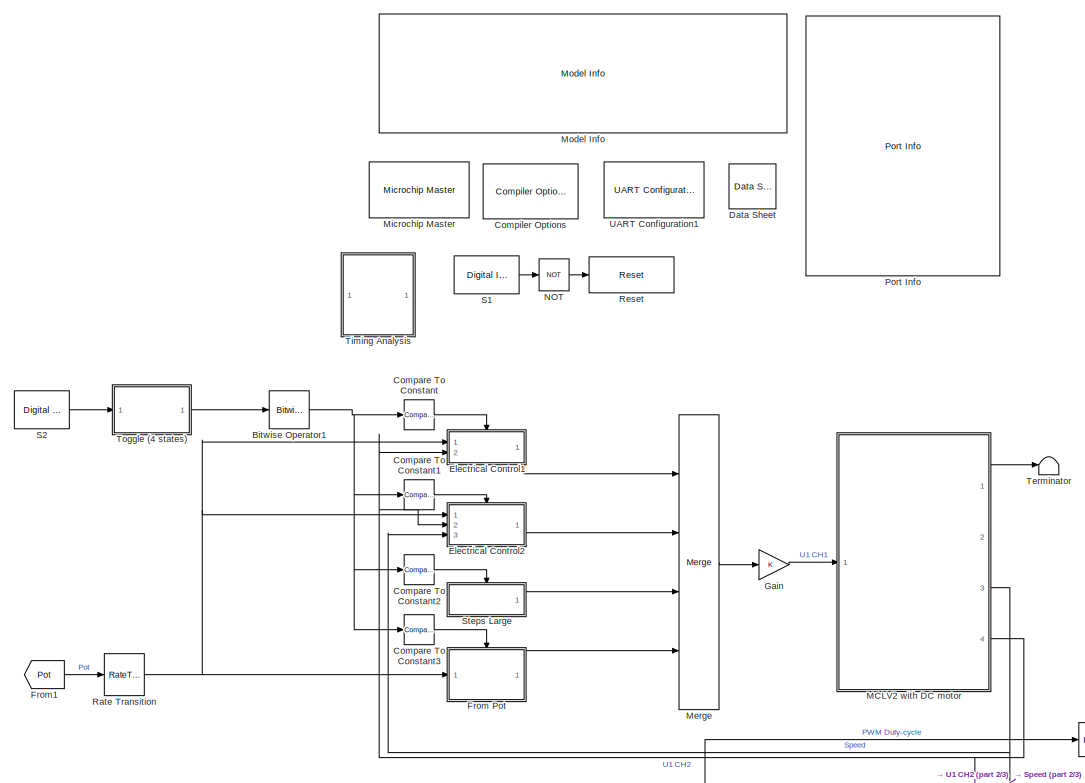
[diagram: root canvas - part 1/3, top center region]
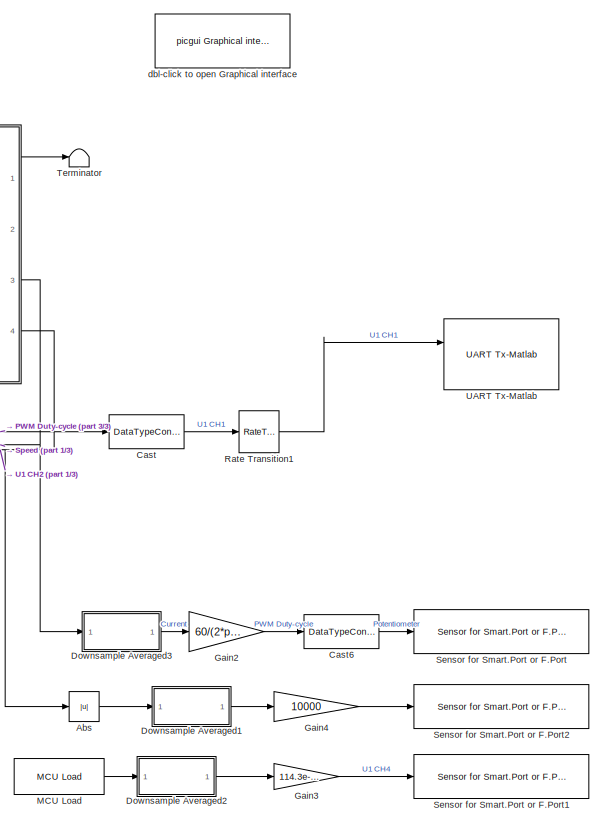
[diagram: root canvas - part 2/3, middle right region]
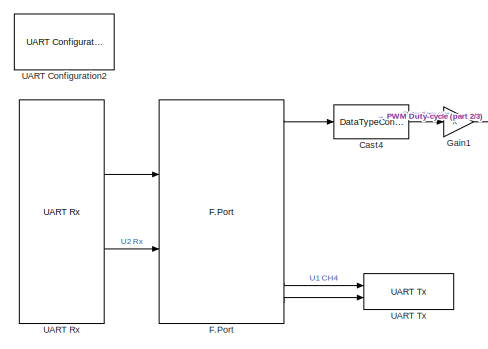
[diagram: root canvas - part 3/3, bottom left region]
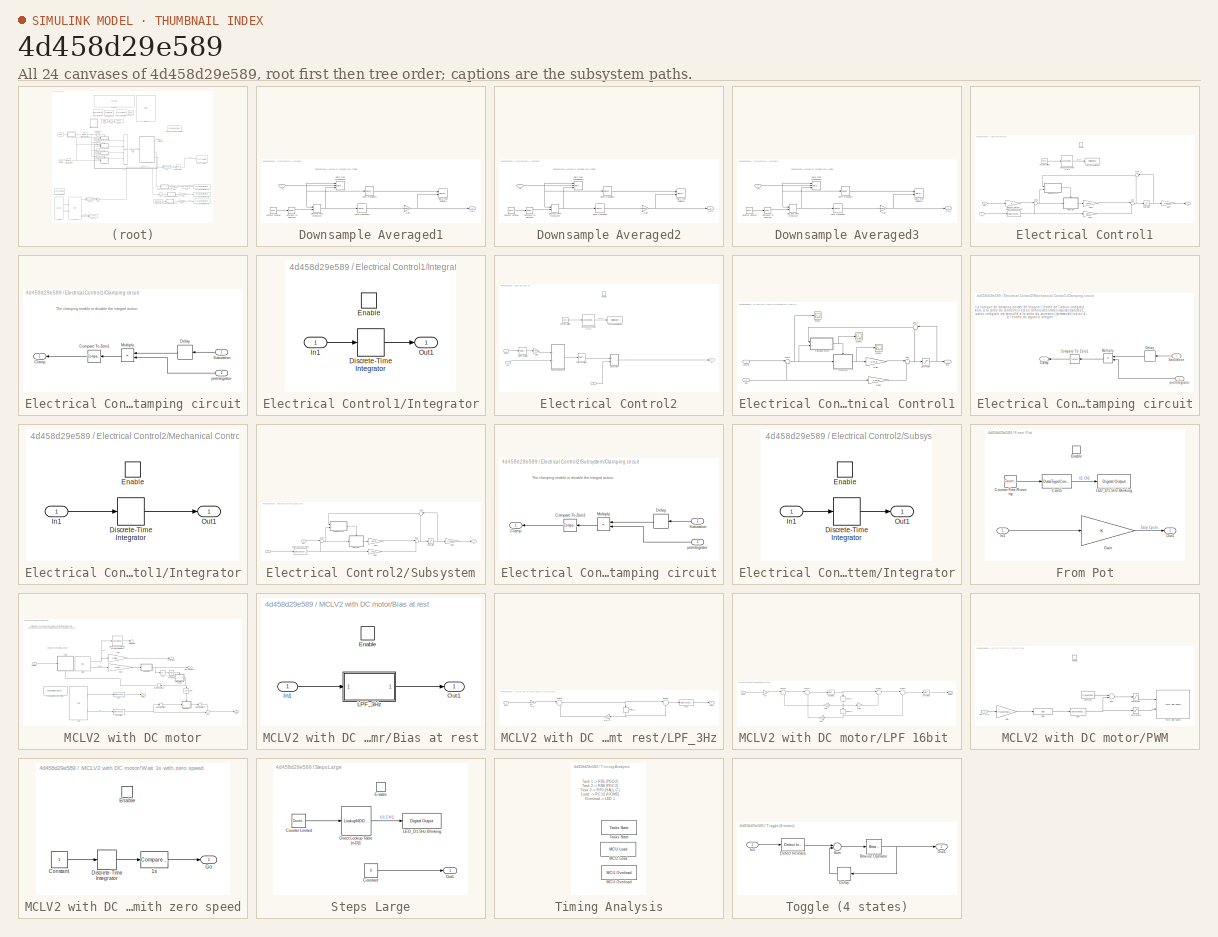
[diagram: thumbnail index - all 24 canvases of the model, root first then tree order]
MODEL slx_4d458d29e589
KIND model
CONFIG AbsTol = auto
CONFIG EnableMultiTasking = on
CONFIG FixedStep = .00005
CONFIG MaxStep = auto
CONFIG MinStep = auto
CONFIG RelTol = 1e-3
CONFIG SampleTimeConstraint = Unconstrained
CONFIG Solver = FixedStepDiscrete
CONFIG SolverName = FixedStepDiscrete
CONFIG StartTime = 0.0
CONFIG StopTime = inf
BLOCK [Abs] Abs
  SaturateOnIntegerOverflow = off
BLOCK [Reference] Bitwise Operator1  REF=simulink/Logic and Bit
Operations/Bitwise
Operator
  Ports = [1, 1]
  SourceBlock = simulink/Logic and Bit\nOperations/Bitwise\nOperator
  SourceProductBaseCode = SL
  SourceProductName = Simulink
  SourceType = Bitwise Operator
BLOCK [DataTypeConversion] Cast
  ConvertRealWorld = Stored Integer (SI)
  OutDataTypeStr = int16
  RndMeth = Floor
  SaturateOnIntegerOverflow = off
BLOCK [DataTypeConversion] Cast4
  ConvertRealWorld = Stored Integer (SI)
  OutDataTypeStr = fixdt(1,16,15)
  RndMeth = Floor
  SaturateOnIntegerOverflow = off
BLOCK [DataTypeConversion] Cast6
  ConvertRealWorld = Stored Integer (SI)
  OutDataTypeStr = uint32
  RndMeth = Floor
  SaturateOnIntegerOverflow = off
BLOCK [Reference] Compare To Constant  REF=simulink/Logic and Bit
Operations/Compare
To Constant
  Ports = [1, 1]
  SourceBlock = simulink/Logic and Bit\nOperations/Compare\nTo Constant
  SourceProductBaseCode = SL
  SourceProductName = Simulink
  SourceType = Compare To Constant
BLOCK [Reference] Compare To Constant1  REF=simulink/Logic and Bit
Operations/Compare
To Constant
  Ports = [1, 1]
  SourceBlock = simulink/Logic and Bit\nOperations/Compare\nTo Constant
  SourceProductBaseCode = SL
  SourceProductName = Simulink
  SourceType = Compare To Constant
BLOCK [Reference] Compare To Constant2  REF=simulink/Logic and Bit
Operations/Compare
To Constant
  Ports = [1, 1]
  SourceBlock = simulink/Logic and Bit\nOperations/Compare\nTo Constant
  SourceProductBaseCode = SL
  SourceProductName = Simulink
  SourceType = Compare To Constant
BLOCK [Reference] Compare To Constant3  REF=simulink/Logic and Bit
Operations/Compare
To Constant
  Ports = [1, 1]
  SourceBlock = simulink/Logic and Bit\nOperations/Compare\nTo Constant
  SourceProductBaseCode = SL
  SourceProductName = Simulink
  SourceType = Compare To Constant
BLOCK [Reference] Compiler Options  REF=MCHP_Blockset/System Configuration/Compiler Options
  Ports = []
  Priority = 1
  SourceBlock = MCHP_Blockset/System Configuration/Compiler Options
  SourceProductName = MPLAB Device Blocks for Simulink
BLOCK [Reference] Data Sheet  REF=MCHP_Blockset/System Info/Data Sheet
  AttributesFormatString = %<cpy_MCHP_Id>
  Ports = []
  SourceBlock = MCHP_Blockset/System Info/Data Sheet
  SourceProductName = MPLAB Device Blocks for Simulink
BLOCK [SubSystem] Downsample Averaged1
  Ports = [1, 1]
  RequestExecContextInheritance = off
BLOCK [Reference] Downsample Averaged1/Compare To Constant  REF=simulink/Logic and Bit
Operations/Compare
To Constant
  Ports = [1, 1]
  SourceBlock = simulink/Logic and Bit\nOperations/Compare\nTo Constant
  SourceProductBaseCode = SL
  SourceProductName = Simulink
  SourceType = Compare To Constant
BLOCK [Reference] Downsample Averaged1/Counter Limited  REF=simulink/Sources/Counter
Limited
  Ports = [0, 1]
  SourceBlock = simulink/Sources/Counter\nLimited
  SourceProductBaseCode = SL
  SourceProductName = Simulink
  SourceType = Counter Limited
BLOCK [DataTypeDuplicate] Downsample Averaged1/Data Type Duplicate
  Ports = [2]
BLOCK [Reference] Downsample Averaged1/Data Type Propagation  REF=simulink/Signal
Attributes/Data Type
Propagation
  Ports = [3]
  SourceBlock = simulink/Signal\nAttributes/Data Type\nPropagation
  SourceProductBaseCode = SL
  SourceProductName = Simulink
  SourceType = Data Type Propagation
BLOCK [DiscreteIntegrator] Downsample Averaged1/Discrete-Time Integrator
  ExternalReset = sampled level
  ICPrevOutput = DiscIntNeverNeededParam
  ICPrevScaledInput = DiscIntNeverNeededParam
  InitialConditionSetting = Auto
  IntegratorMethod = Accumulation: Backward Euler
  OutDataTypeStr = Inherit: Inherit via back propagation
  Ports = [2, 1]
  SampleTime = -1
  gainval = 1
BLOCK [Gain] Downsample Averaged1/Gain
  Gain = 1/DownSample
  OutDataTypeStr = Inherit: Inherit via back propagation
  ParamDataTypeStr = Inherit: Inherit via internal rule
  SaturateOnIntegerOverflow = off
BLOCK [Inport] Downsample Averaged1/In1
  IconDisplay = Port number
BLOCK [Outport] Downsample Averaged1/Out1
  IconDisplay = Port number
BLOCK [RateTransition] Downsample Averaged1/Rate Transition1
  Deterministic = off
  OutPortSampleTime = [InputSampleTime * DownSample]
BLOCK [RateTransition] Downsample Averaged1/Rate Transition3
  OutPortSampleTime = [InputSampleTime * DownSample]
BLOCK [SubSystem] Downsample Averaged2
  Ports = [1, 1]
  RequestExecContextInheritance = off
BLOCK [Reference] Downsample Averaged2/Compare To Constant  REF=simulink/Logic and Bit
Operations/Compare
To Constant
  Ports = [1, 1]
  SourceBlock = simulink/Logic and Bit\nOperations/Compare\nTo Constant
  SourceProductBaseCode = SL
  SourceProductName = Simulink
  SourceType = Compare To Constant
BLOCK [Reference] Downsample Averaged2/Counter Limited  REF=simulink/Sources/Counter
Limited
  Ports = [0, 1]
  SourceBlock = simulink/Sources/Counter\nLimited
  SourceProductBaseCode = SL
  SourceProductName = Simulink
  SourceType = Counter Limited
BLOCK [DataTypeDuplicate] Downsample Averaged2/Data Type Duplicate
  Ports = [2]
BLOCK [Reference] Downsample Averaged2/Data Type Propagation  REF=simulink/Signal
Attributes/Data Type
Propagation
  Ports = [3]
  SourceBlock = simulink/Signal\nAttributes/Data Type\nPropagation
  SourceProductBaseCode = SL
  SourceProductName = Simulink
  SourceType = Data Type Propagation
BLOCK [DiscreteIntegrator] Downsample Averaged2/Discrete-Time Integrator
  ExternalReset = sampled level
  ICPrevOutput = DiscIntNeverNeededParam
  ICPrevScaledInput = DiscIntNeverNeededParam
  InitialConditionSetting = Auto
  IntegratorMethod = Accumulation: Backward Euler
  OutDataTypeStr = Inherit: Inherit via back propagation
  Ports = [2, 1]
  SampleTime = -1
  gainval = 1
BLOCK [Gain] Downsample Averaged2/Gain
  Gain = 1/DownSample
  OutDataTypeStr = Inherit: Inherit via back propagation
  ParamDataTypeStr = Inherit: Inherit via internal rule
  SaturateOnIntegerOverflow = off
BLOCK [Inport] Downsample Averaged2/In1
  IconDisplay = Port number
BLOCK [Outport] Downsample Averaged2/Out1
  IconDisplay = Port number
BLOCK [RateTransition] Downsample Averaged2/Rate Transition1
  Deterministic = off
  OutPortSampleTime = [InputSampleTime * DownSample]
BLOCK [RateTransition] Downsample Averaged2/Rate Transition3
  OutPortSampleTime = [InputSampleTime * DownSample]
BLOCK [SubSystem] Downsample Averaged3
  Ports = [1, 1]
  RequestExecContextInheritance = off
BLOCK [Reference] Downsample Averaged3/Compare To Constant  REF=simulink/Logic and Bit
Operations/Compare
To Constant
  Ports = [1, 1]
  SourceBlock = simulink/Logic and Bit\nOperations/Compare\nTo Constant
  SourceProductBaseCode = SL
  SourceProductName = Simulink
  SourceType = Compare To Constant
BLOCK [Reference] Downsample Averaged3/Counter Limited  REF=simulink/Sources/Counter
Limited
  Ports = [0, 1]
  SourceBlock = simulink/Sources/Counter\nLimited
  SourceProductBaseCode = SL
  SourceProductName = Simulink
  SourceType = Counter Limited
BLOCK [DataTypeDuplicate] Downsample Averaged3/Data Type Duplicate
  Ports = [2]
BLOCK [Reference] Downsample Averaged3/Data Type Propagation  REF=simulink/Signal
Attributes/Data Type
Propagation
  Ports = [3]
  SourceBlock = simulink/Signal\nAttributes/Data Type\nPropagation
  SourceProductBaseCode = SL
  SourceProductName = Simulink
  SourceType = Data Type Propagation
BLOCK [DiscreteIntegrator] Downsample Averaged3/Discrete-Time Integrator
  ExternalReset = sampled level
  ICPrevOutput = DiscIntNeverNeededParam
  ICPrevScaledInput = DiscIntNeverNeededParam
  InitialConditionSetting = Auto
  IntegratorMethod = Accumulation: Backward Euler
  OutDataTypeStr = Inherit: Inherit via back propagation
  Ports = [2, 1]
  SampleTime = -1
  gainval = 1
BLOCK [Gain] Downsample Averaged3/Gain
  Gain = 1/DownSample
  OutDataTypeStr = Inherit: Inherit via back propagation
  ParamDataTypeStr = Inherit: Inherit via internal rule
  SaturateOnIntegerOverflow = off
BLOCK [Inport] Downsample Averaged3/In1
  IconDisplay = Port number
BLOCK [Outport] Downsample Averaged3/Out1
  IconDisplay = Port number
BLOCK [RateTransition] Downsample Averaged3/Rate Transition1
  Deterministic = off
  OutPortSampleTime = [InputSampleTime * DownSample]
BLOCK [RateTransition] Downsample Averaged3/Rate Transition3
  OutPortSampleTime = [InputSampleTime * DownSample]
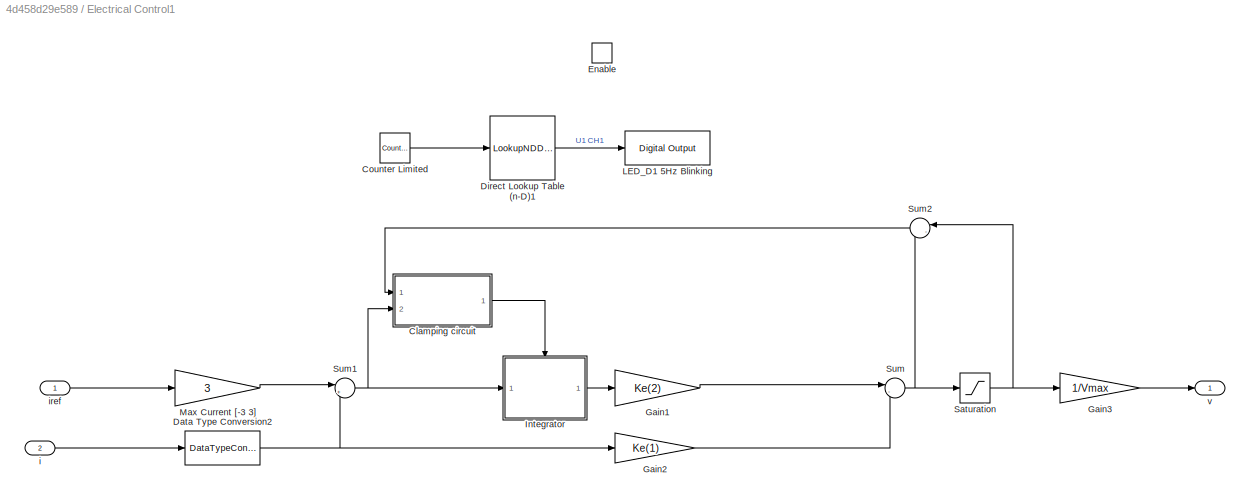
BLOCK [SubSystem] Electrical Control1
  Ports = [2, 1, 1]
  RequestExecContextInheritance = off
BLOCK [SubSystem] Electrical Control1/Clamping circuit
  Ports = [2, 1]
  RequestExecContextInheritance = off
BLOCK [Outport] Electrical Control1/Clamping circuit/Clamp
  DisableCoverage = on
  IconDisplay = Port number
BLOCK [Reference] Electrical Control1/Clamping circuit/Compare To Zero1  REF=simulink/Logic and Bit
Operations/Compare
To Zero
  Ports = [1, 1]
  SourceBlock = simulink/Logic and Bit\nOperations/Compare\nTo Zero
  SourceProductBaseCode = SL
  SourceProductName = Simulink
  SourceType = Compare To Zero
BLOCK [Delay] Electrical Control1/Clamping circuit/Delay
  DelayLength = 1
  InitialCondition = 0
  InputPortMap = u0
  Ports = [1, 1]
BLOCK [Product] Electrical Control1/Clamping circuit/Multiply
  InputSameDT = off
  OutDataTypeStr = Inherit: Inherit via internal rule
  Ports = [2, 1]
  RndMeth = Floor
  SaturateOnIntegerOverflow = off
BLOCK [Inport] Electrical Control1/Clamping circuit/Saturation
  DisableCoverage = on
  IconDisplay = Port number
BLOCK [Inport] Electrical Control1/Clamping circuit/preIntegrator
  DisableCoverage = on
  IconDisplay = Port number
  Port = 2
  VarSizeSig = No
BLOCK [Reference] Electrical Control1/Counter Limited  REF=simulink/Sources/Counter
Limited
  Ports = [0, 1]
  SourceBlock = simulink/Sources/Counter\nLimited
  SourceProductBaseCode = SL
  SourceProductName = Simulink
  SourceType = Counter Limited
BLOCK [DataTypeConversion] Electrical Control1/Data Type Conversion2
  RndMeth = Floor
BLOCK [LookupNDDirect] Electrical Control1/Direct Lookup Table (n-D)1
  NumberOfTableDimensions = 1
  Ports = [1, 1]
  Table = [1 0 0 0 0 0 0 0 0 0]
  TableDataTypeStr = boolean
BLOCK [EnablePort] Electrical Control1/Enable
  Ports = []
  StatesWhenEnabling = reset
BLOCK [Gain] Electrical Control1/Gain1
  Gain = Ke(2)
  OutDataTypeStr = fixdt(1,16)
  OutMax = [2*Vmax]
  OutMin = [2*Vmin]
  ParamDataTypeStr = Inherit: Inherit via internal rule
  SaturateOnIntegerOverflow = off
BLOCK [Gain] Electrical Control1/Gain2
  Gain = Ke(1)
  OutDataTypeStr = fixdt(1,16)
  OutMax = [2*Vmax]
  OutMin = [2*Vmin]
  ParamDataTypeStr = Inherit: Inherit via internal rule
  SaturateOnIntegerOverflow = off
BLOCK [Gain] Electrical Control1/Gain3
  Gain = 1/Vmax
  OutDataTypeStr = fixdt(1,16,15)
  ParamDataTypeStr = Inherit: Inherit via internal rule
BLOCK [SubSystem] Electrical Control1/Integrator
  Ports = [1, 1, 1]
  RequestExecContextInheritance = off
BLOCK [DiscreteIntegrator] Electrical Control1/Integrator/Discrete-Time Integrator
  ICPrevOutput = DiscIntNeverNeededParam
  ICPrevScaledInput = DiscIntNeverNeededParam
  InitialConditionSetting = Auto
  OutDataTypeStr = fixdt(1,32)
  OutMax = [2*Imax]
  OutMin = [2*Imin]
  Ports = [1, 1]
  SampleTime = Ts
BLOCK [EnablePort] Electrical Control1/Integrator/Enable
  Ports = []
BLOCK [Inport] Electrical Control1/Integrator/In1
  IconDisplay = Port number
BLOCK [Outport] Electrical Control1/Integrator/Out1
  IconDisplay = Port number
BLOCK [Reference] Electrical Control1/LED_D1 5Hz Blinking  REF=MCHP_Blockset/Digital IO/Digital Output
  Ports = [1]
  SourceBlock = MCHP_Blockset/Digital IO/Digital Output
  SourceProductName = MPLAB Device Blocks for Simulink
BLOCK [Gain] Electrical Control1/Max Current [-3 3]
  Gain = 3
  OutDataTypeStr = fixdt(1,16)
  OutMax = 3
  OutMin = -3
  ParamDataTypeStr = Inherit: Inherit via internal rule
  SaturateOnIntegerOverflow = off
BLOCK [Saturate] Electrical Control1/Saturation
  InputPortMap = u0
  LowerLimit = Vmin
  Ports = [1, 1]
  UpperLimit = Vmax
BLOCK [Sum] Electrical Control1/Sum
  IconShape = round
  InputSameDT = off
  Inputs = |--
  OutDataTypeStr = Inherit: Inherit via internal rule
  Ports = [2, 1]
BLOCK [Sum] Electrical Control1/Sum1
  IconShape = round
  InputSameDT = off
  Inputs = |+-
  OutDataTypeStr = fixdt(1,16)
  OutMax = [2*Imax]
  OutMin = [2*Imin]
  Ports = [2, 1]
BLOCK [Sum] Electrical Control1/Sum2
  AccumDataTypeStr = Inherit: Same as first input
  IconShape = round
  InputSameDT = off
  Inputs = |-+
  OutDataTypeStr = Inherit: Same as accumulator
  Ports = [2, 1]
  SaturateOnIntegerOverflow = off
BLOCK [Inport] Electrical Control1/i
  IconDisplay = Port number
  Port = 2
BLOCK [Inport] Electrical Control1/iref
  IconDisplay = Port number
BLOCK [Outport] Electrical Control1/v
  IconDisplay = Port number
BLOCK [SubSystem] Electrical Control2
  Ports = [3, 1, 1]
  RequestExecContextInheritance = off
BLOCK [Reference] Electrical Control2/Counter Limited  REF=simulink/Sources/Counter
Limited
  Ports = [0, 1]
  SourceBlock = simulink/Sources/Counter\nLimited
  SourceProductBaseCode = SL
  SourceProductName = Simulink
  SourceType = Counter Limited
BLOCK [LookupNDDirect] Electrical Control2/Direct Lookup Table (n-D)1
  NumberOfTableDimensions = 1
  Ports = [1, 1]
  Table = [1 0 1 0 0 0 0 0 0 0]
  TableDataTypeStr = boolean
BLOCK [EnablePort] Electrical Control2/Enable
  Ports = []
  StatesWhenEnabling = reset
BLOCK [Gain] Electrical Control2/Gain
  Gain = 350
  OutDataTypeStr = Inherit: Inherit via back propagation
  ParamDataTypeStr = Inherit: Inherit via internal rule
  SaturateOnIntegerOverflow = off
BLOCK [Reference] Electrical Control2/LED_D1 5Hz Blinking  REF=MCHP_Blockset/Digital IO/Digital Output
  Ports = [1]
  SourceBlock = MCHP_Blockset/Digital IO/Digital Output
  SourceProductName = MPLAB Device Blocks for Simulink
BLOCK [SubSystem] Electrical Control2/Mechanical Control1
  Ports = [2, 1]
  RequestExecContextInheritance = off
BLOCK [SubSystem] Electrical Control2/Mechanical Control1/Clamping circuit
  Ports = [2, 1]
  RequestExecContextInheritance = off
BLOCK [Outport] Electrical Control2/Mechanical Control1/Clamping circuit/Clamp
  DisableCoverage = on
  IconDisplay = Port number
BLOCK [Reference] Electrical Control2/Mechanical Control1/Clamping circuit/Compare To Zero1  REF=simulink/Logic and Bit
Operations/Compare
To Zero
  Ports = [1, 1]
  SourceBlock = simulink/Logic and Bit\nOperations/Compare\nTo Zero
  SourceProductBaseCode = SL
  SourceProductName = Simulink
  SourceType = Compare To Zero
BLOCK [Delay] Electrical Control2/Mechanical Control1/Clamping circuit/Delay
  DelayLength = 1
  InitialCondition = 0
  InputPortMap = u0
  Ports = [1, 1]
  SampleTime = TsMeca
BLOCK [Product] Electrical Control2/Mechanical Control1/Clamping circuit/Multiply
  InputSameDT = off
  OutDataTypeStr = Inherit: Inherit via internal rule
  Ports = [2, 1]
  RndMeth = Floor
  SaturateOnIntegerOverflow = off
BLOCK [Inport] Electrical Control2/Mechanical Control1/Clamping circuit/Saturation
  DisableCoverage = on
  IconDisplay = Port number
BLOCK [Inport] Electrical Control2/Mechanical Control1/Clamping circuit/preIntegrator
  DisableCoverage = on
  IconDisplay = Port number
  Port = 2
  VarSizeSig = No
BLOCK [Gain] Electrical Control2/Mechanical Control1/Gain1
  Gain = Km(2)
  OutDataTypeStr = fixdt(1,16)
  OutMax = [2*Imax]
  OutMin = [-2*Imax]
  ParamDataTypeStr = Inherit: Inherit via internal rule
  SaturateOnIntegerOverflow = off
BLOCK [Gain] Electrical Control2/Mechanical Control1/Gain2
  Gain = Km(1)
  OutDataTypeStr = fixdt(1,16)
  OutMax = [2*Imax]
  OutMin = [-2*Imax]
  ParamDataTypeStr = Inherit: Inherit via internal rule
  SaturateOnIntegerOverflow = off
BLOCK [SubSystem] Electrical Control2/Mechanical Control1/Integrator
  Ports = [1, 1, 1]
  RequestExecContextInheritance = off
BLOCK [DiscreteIntegrator] Electrical Control2/Mechanical Control1/Integrator/Discrete-Time Integrator
  ICPrevOutput = DiscIntNeverNeededParam
  ICPrevScaledInput = DiscIntNeverNeededParam
  InitialConditionSetting = Auto
  OutDataTypeStr = fixdt(1,32)
  OutMax = [2*Ommax]
  OutMin = [2*Ommin]
  Ports = [1, 1]
  SampleTime = TsMeca
BLOCK [EnablePort] Electrical Control2/Mechanical Control1/Integrator/Enable
  Ports = []
BLOCK [Inport] Electrical Control2/Mechanical Control1/Integrator/In1
  IconDisplay = Port number
BLOCK [Outport] Electrical Control2/Mechanical Control1/Integrator/Out1
  IconDisplay = Port number
BLOCK [Saturate] Electrical Control2/Mechanical Control1/Saturation
  InputPortMap = u0
  LowerLimit = Imin
  Ports = [1, 1]
  UpperLimit = Imax
BLOCK [Scope] Electrical Control2/Mechanical Control1/Scope
  Floating = off
  NumInputPorts = 1
  Ports = [1]
  ScopeSpecificationString = Simulink.scopes.TimeScopeBlockCfg('CurrentConfiguration', extmgr.ConfigurationSet(extmgr.Configuration('Core','General UI',true),extmgr.Configuration('Core','Source UI',true),extmgr.Configuration('Sources','WiredSimulink',true,'DataLoggingVariableName','ScopeData2'),extmgr.Configuration('Visuals','Time Domain',true,'SerializedDisplays',{struct('MinYLimReal','-251.19531','MaxYLimReal','250.13281','...<+1406ch>
BLOCK [Scope] Electrical Control2/Mechanical Control1/Scope1
  Floating = off
  NumInputPorts = 1
  Ports = [1]
  ScopeSpecificationString = Simulink.scopes.TimeScopeBlockCfg('CurrentConfiguration', extmgr.ConfigurationSet(extmgr.Configuration('Core','General UI',true),extmgr.Configuration('Core','Source UI',true),extmgr.Configuration('Sources','WiredSimulink',true,'DataLoggingVariableName','ScopeData3'),extmgr.Configuration('Visuals','Time Domain',true,'SerializedDisplays',{struct('MinYLimReal','-6.72581','MaxYLimReal','37.52422','YLa...<+1402ch>
BLOCK [Scope] Electrical Control2/Mechanical Control1/Scope2
  Floating = off
  NumInputPorts = 1
  Ports = [1]
  ScopeSpecificationString = Simulink.scopes.TimeScopeBlockCfg('CurrentConfiguration', extmgr.ConfigurationSet(extmgr.Configuration('Core','General UI',true),extmgr.Configuration('Core','Source UI',true),extmgr.Configuration('Sources','WiredSimulink',true,'DataLoggingVariableName','ScopeData4'),extmgr.Configuration('Visuals','Time Domain',true,'SerializedDisplays',{struct('MinYLimReal','0.9','MaxYLimReal','1.1','YLabelReal','...<+1370ch>
BLOCK [Sum] Electrical Control2/Mechanical Control1/Sum
  IconShape = round
  InputSameDT = off
  Inputs = |--
  OutDataTypeStr = Inherit: Inherit via internal rule
  Ports = [2, 1]
BLOCK [Sum] Electrical Control2/Mechanical Control1/Sum1
  IconShape = round
  InputSameDT = off
  Inputs = |+-
  OutDataTypeStr = fixdt(1,16)
  OutMax = [2*Ommax]
  OutMin = [2*Ommin]
  Ports = [2, 1]
BLOCK [Sum] Electrical Control2/Mechanical Control1/Sum2
  AccumDataTypeStr = Inherit: Same as first input
  IconShape = round
  InputSameDT = off
  Inputs = |-+
  OutDataTypeStr = Inherit: Same as accumulator
  Ports = [2, 1]
  SaturateOnIntegerOverflow = off
BLOCK [Outport] Electrical Control2/Mechanical Control1/iref
  IconDisplay = Port number
BLOCK [Inport] Electrical Control2/Mechanical Control1/om
  IconDisplay = Port number
  Port = 2
BLOCK [Inport] Electrical Control2/Mechanical Control1/omref
  IconDisplay = Port number
  OutDataTypeStr = fixdt(1,16)
  OutMax = [Ommax]
  OutMin = [Ommin]
BLOCK [RateTransition] Electrical Control2/Rate Transition
  Deterministic = off
BLOCK [RateTransition] Electrical Control2/Rate Transition2
  Deterministic = off
BLOCK [SubSystem] Electrical Control2/Subsystem
  Ports = [2, 1]
  RequestExecContextInheritance = off
BLOCK [SubSystem] Electrical Control2/Subsystem/Clamping circuit
  Ports = [2, 1]
  RequestExecContextInheritance = off
BLOCK [Outport] Electrical Control2/Subsystem/Clamping circuit/Clamp
  DisableCoverage = on
  IconDisplay = Port number
BLOCK [Reference] Electrical Control2/Subsystem/Clamping circuit/Compare To Zero1  REF=simulink/Logic and Bit
Operations/Compare
To Zero
  Ports = [1, 1]
  SourceBlock = simulink/Logic and Bit\nOperations/Compare\nTo Zero
  SourceProductBaseCode = SL
  SourceProductName = Simulink
  SourceType = Compare To Zero
BLOCK [Delay] Electrical Control2/Subsystem/Clamping circuit/Delay
  DelayLength = 1
  InitialCondition = 0
  InputPortMap = u0
  Ports = [1, 1]
BLOCK [Product] Electrical Control2/Subsystem/Clamping circuit/Multiply
  InputSameDT = off
  OutDataTypeStr = Inherit: Inherit via internal rule
  Ports = [2, 1]
  RndMeth = Floor
  SaturateOnIntegerOverflow = off
BLOCK [Inport] Electrical Control2/Subsystem/Clamping circuit/Saturation
  DisableCoverage = on
  IconDisplay = Port number
BLOCK [Inport] Electrical Control2/Subsystem/Clamping circuit/preIntegrator
  DisableCoverage = on
  IconDisplay = Port number
  Port = 2
  VarSizeSig = No
BLOCK [DataTypeConversion] Electrical Control2/Subsystem/Data Type Conversion2
  RndMeth = Floor
BLOCK [Gain] Electrical Control2/Subsystem/Gain1
  Gain = Ke(2)
  OutDataTypeStr = fixdt(1,16)
  OutMax = [2*Vmax]
  OutMin = [2*Vmin]
  ParamDataTypeStr = Inherit: Inherit via internal rule
  SaturateOnIntegerOverflow = off
BLOCK [Gain] Electrical Control2/Subsystem/Gain2
  Gain = Ke(1)
  OutDataTypeStr = fixdt(1,16)
  OutMax = [2*Vmax]
  OutMin = [2*Vmin]
  ParamDataTypeStr = Inherit: Inherit via internal rule
  SaturateOnIntegerOverflow = off
BLOCK [Gain] Electrical Control2/Subsystem/Gain3
  Gain = 1/Vmax
  OutDataTypeStr = fixdt(1,16,15)
  ParamDataTypeStr = Inherit: Inherit via internal rule
BLOCK [SubSystem] Electrical Control2/Subsystem/Integrator
  Ports = [1, 1, 1]
  RequestExecContextInheritance = off
BLOCK [DiscreteIntegrator] Electrical Control2/Subsystem/Integrator/Discrete-Time Integrator
  ICPrevOutput = DiscIntNeverNeededParam
  ICPrevScaledInput = DiscIntNeverNeededParam
  InitialConditionSetting = Auto
  OutDataTypeStr = fixdt(1,32)
  OutMax = [2*Imax]
  OutMin = [2*Imin]
  Ports = [1, 1]
  SampleTime = Ts
BLOCK [EnablePort] Electrical Control2/Subsystem/Integrator/Enable
  Ports = []
BLOCK [Inport] Electrical Control2/Subsystem/Integrator/In1
  IconDisplay = Port number
BLOCK [Outport] Electrical Control2/Subsystem/Integrator/Out1
  IconDisplay = Port number
BLOCK [Saturate] Electrical Control2/Subsystem/Saturation
  InputPortMap = u0
  LowerLimit = Vmin
  Ports = [1, 1]
  UpperLimit = Vmax
BLOCK [Sum] Electrical Control2/Subsystem/Sum
  IconShape = round
  InputSameDT = off
  Inputs = |--
  OutDataTypeStr = Inherit: Inherit via internal rule
  Ports = [2, 1]
BLOCK [Sum] Electrical Control2/Subsystem/Sum1
  IconShape = round
  InputSameDT = off
  Inputs = |+-
  OutDataTypeStr = fixdt(1,16)
  OutMax = [2*Imax]
  OutMin = [2*Imin]
  Ports = [2, 1]
BLOCK [Sum] Electrical Control2/Subsystem/Sum2
  AccumDataTypeStr = Inherit: Same as first input
  IconShape = round
  InputSameDT = off
  Inputs = |-+
  OutDataTypeStr = Inherit: Same as accumulator
  Ports = [2, 1]
  SaturateOnIntegerOverflow = off
BLOCK [Inport] Electrical Control2/Subsystem/i
  IconDisplay = Port number
  Port = 2
BLOCK [Inport] Electrical Control2/Subsystem/iref
  IconDisplay = Port number
BLOCK [Outport] Electrical Control2/Subsystem/v
  IconDisplay = Port number
BLOCK [Inport] Electrical Control2/i
  IconDisplay = Port number
  Port = 2
BLOCK [Inport] Electrical Control2/om
  IconDisplay = Port number
  Port = 3
BLOCK [Inport] Electrical Control2/omref
  IconDisplay = Port number
BLOCK [Outport] Electrical Control2/v
  IconDisplay = Port number
BLOCK [Reference] F.Port  REF=UxV_Blockset/RECEIVER/F.Port
  Ports = [2, 10]
  SourceBlock = UxV_Blockset/RECEIVER/F.Port
  SourceProductName = UxV_Blocks
  SourceType = F.Port protocol parser (without PhyId)
  UserDataPersistent = on
BLOCK [SubSystem] From Pot
  Ports = [1, 1, 1]
  RequestExecContextInheritance = off
BLOCK [DataTypeConversion] From Pot/Cast5
  OutDataTypeStr = boolean
  RndMeth = Floor
  SaturateOnIntegerOverflow = off
BLOCK [Reference] From Pot/Counter Free-Running  REF=simulink/Sources/Counter
Free-Running
  Ports = [0, 1]
  SourceBlock = simulink/Sources/Counter\nFree-Running
  SourceProductBaseCode = SL
  SourceProductName = Simulink
  SourceType = Counter Free-Running
BLOCK [EnablePort] From Pot/Enable
  Ports = []
BLOCK [Gain] From Pot/Gain
  OutDataTypeStr = fixdt(1,16,15)
  ParamDataTypeStr = Inherit: Inherit via internal rule
  SaturateOnIntegerOverflow = off
BLOCK [Inport] From Pot/In1
  IconDisplay = Port number
BLOCK [Reference] From Pot/LED_D1 5Hz Blinking  REF=MCHP_Blockset/Digital IO/Digital Output
  Ports = [1]
  SourceBlock = MCHP_Blockset/Digital IO/Digital Output
  SourceProductName = MPLAB Device Blocks for Simulink
BLOCK [Outport] From Pot/Out1
  IconDisplay = Port number
BLOCK [From] From1
  GotoTag = Pot
BLOCK [Gain] Gain
  ParamDataTypeStr = Inherit: Inherit via internal rule
BLOCK [Gain] Gain1
  ParamDataTypeStr = Inherit: Inherit via internal rule
BLOCK [Gain] Gain2
  Gain = 60/(2*pi)
  OutDataTypeStr = int32
  ParamDataTypeStr = Inherit: Inherit via internal rule
BLOCK [Gain] Gain3
  Gain = 114.3e-9/0.002*1e4
  OutDataTypeStr = uint32
  ParamDataTypeStr = fixdt(0,16)
BLOCK [Gain] Gain4
  Gain = 10000
  OutDataTypeStr = uint32
  ParamDataTypeStr = Inherit: Inherit via internal rule
  SaturateOnIntegerOverflow = off
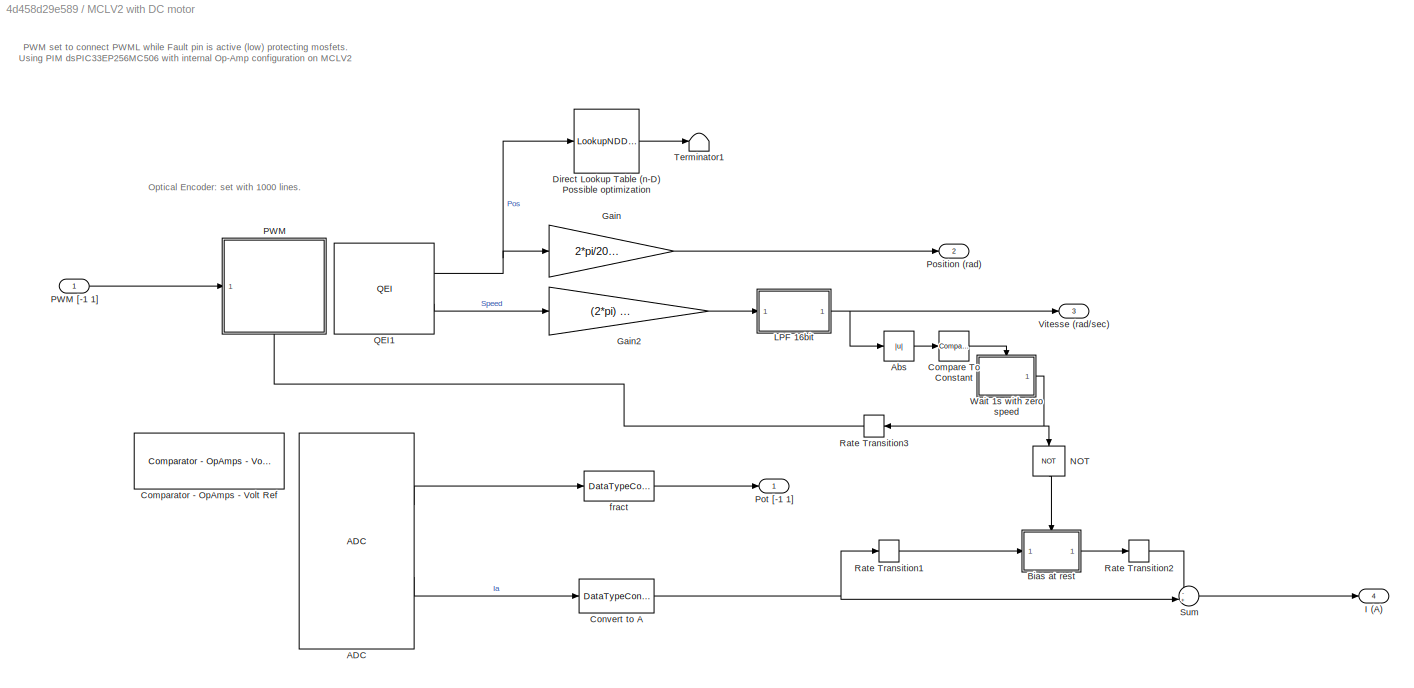
BLOCK [SubSystem] MCLV2 with DC motor
  Ports = [1, 4]
  RequestExecContextInheritance = off
BLOCK [Reference] MCLV2 with DC motor/ADC  REF=MCHP_Blockset/Analog IO/ADC
  Ports = [0, 2]
  Priority = 5
  SourceBlock = MCHP_Blockset/Analog IO/ADC
  SourceProductName = MPLAB Device Blocks for Simulink
BLOCK [Abs] MCLV2 with DC motor/Abs
  SaturateOnIntegerOverflow = off
BLOCK [SubSystem] MCLV2 with DC motor/Bias at rest
  Ports = [1, 1, 1]
  RequestExecContextInheritance = off
  TreatAsAtomicUnit = on
BLOCK [EnablePort] MCLV2 with DC motor/Bias at rest/Enable
  Ports = []
BLOCK [Inport] MCLV2 with DC motor/Bias at rest/In1
  IconDisplay = Port number
BLOCK [SubSystem] MCLV2 with DC motor/Bias at rest/LPF_3Hz
  ErrorFcn = dspFilterRealizedInBasicElemsAlgLoopErrFcnCallback
  Ports = [1, 1]
  RequestExecContextInheritance = off
  Tag = FilterWizardSubSystem
  UserDataPersistent = on
BLOCK [DataTypeConversion] MCLV2 with DC motor/Bias at rest/LPF_3Hz/Cast
  RndMeth = Floor
  SaturateOnIntegerOverflow = off
BLOCK [Delay] MCLV2 with DC motor/Bias at rest/LPF_3Hz/Delay11
  DelayLength = 1
  InitialCondition = 0
  InputPortMap = u0
  Ports = [1, 1]
BLOCK [Inport] MCLV2 with DC motor/Bias at rest/LPF_3Hz/Input
  IconDisplay = Port number
BLOCK [Outport] MCLV2 with DC motor/Bias at rest/LPF_3Hz/Output
  IconDisplay = Port number
BLOCK [Sum] MCLV2 with DC motor/Bias at rest/LPF_3Hz/SumA21
  AccumDataTypeStr = Inherit: Same as first input
  IconShape = round
  InputSameDT = off
  Inputs = |+-
  Ports = [2, 1]
  RndMeth = Convergent
BLOCK [Sum] MCLV2 with DC motor/Bias at rest/LPF_3Hz/SumB21
  AccumDataTypeStr = Inherit: Same as first input
  IconShape = round
  InputSameDT = off
  Inputs = |++
  Ports = [2, 1]
  RndMeth = Simplest
BLOCK [Gain] MCLV2 with DC motor/Bias at rest/LPF_3Hz/a(2)(1)
  Gain = -0.962994050950215286
  ParamDataTypeStr = fixdt(1,16,14)
  RndMeth = Simplest
  SaturateOnIntegerOverflow = off
BLOCK [Gain] MCLV2 with DC motor/Bias at rest/LPF_3Hz/s(1)
  Gain = 0.0185029745248923086
  OutDataTypeStr = fixdt(1,16,16)
  ParamDataTypeStr = fixdt(1,16,20)
  RndMeth = Convergent
BLOCK [Outport] MCLV2 with DC motor/Bias at rest/Out1
  IconDisplay = Port number
  InitialOutput = 0
BLOCK [Reference] MCLV2 with DC motor/Comparator - OpAmps - Volt Ref  REF=MCHP_Blockset/Analog IO/Comparator - OpAmps - Volt Ref
  Ports = []
  SourceBlock = MCHP_Blockset/Analog IO/Comparator - OpAmps - Volt Ref
  SourceProductName = MPLAB Device Blocks for Simulink
  SourceType = Comparator / Op amp (DS70357 & DS70648)
  UserDataPersistent = on
BLOCK [Reference] MCLV2 with DC motor/Compare To Constant  REF=simulink/Logic and Bit
Operations/Compare
To Constant
  Ports = [1, 1]
  SourceBlock = simulink/Logic and Bit\nOperations/Compare\nTo Constant
  SourceProductBaseCode = SL
  SourceProductName = Simulink
  SourceType = Compare To Constant
BLOCK [DataTypeConversion] MCLV2 with DC motor/Convert to A
  ConvertRealWorld = Stored Integer (SI)
  OutDataTypeStr = fixdt(1,16,4.4/32768,0)
  RndMeth = Floor
  SaturateOnIntegerOverflow = off
BLOCK [LookupNDDirect] MCLV2 with DC motor/Direct Lookup Table (n-D) Possible optimization
  LockScale = on
  NumberOfTableDimensions = 1
  Ports = [1, 1]
  Table = [0:(1000-1)]*2*pi/1000
  TableDataTypeStr = fixdt(1,16,5)
BLOCK [Gain] MCLV2 with DC motor/Gain
  Gain = 2*pi/2000
  OutDataTypeStr = fixdt(1,16,5)
  ParamDataTypeStr = Inherit: Inherit via internal rule
  SaturateOnIntegerOverflow = off
BLOCK [Gain] MCLV2 with DC motor/Gain2
  Gain = (2*pi) / 2000 / 0.002
  LockScale = on
  OutDataTypeStr = fixdt(1,16,5)
  ParamDataTypeStr = Inherit: Inherit via internal rule
  SaturateOnIntegerOverflow = off
BLOCK [Outport] MCLV2 with DC motor/I (A)
  IconDisplay = Port number
  Port = 4
BLOCK [SubSystem] MCLV2 with DC motor/LPF 16bit 
  ErrorFcn = dspFilterRealizedInBasicElemsAlgLoopErrFcnCallback
  Ports = [1, 1]
  RequestExecContextInheritance = off
  Tag = FilterWizardSubSystem
  UserDataPersistent = on
BLOCK [DataTypeConversion] MCLV2 with DC motor/LPF 16bit /CastState1
  OutDataTypeStr = fixdt(1,16,6)
  RndMeth = Floor
  SaturateOnIntegerOverflow = off
BLOCK [DataTypeConversion] MCLV2 with DC motor/LPF 16bit /ConvertOut
  OutDataTypeStr = fixdt(1,16,4)
  RndMeth = Floor
  SaturateOnIntegerOverflow = off
BLOCK [Delay] MCLV2 with DC motor/LPF 16bit /Delay11
  DelayLength = 1
  InitialCondition = 0
  InputPortMap = u0
  Ports = [1, 1]
BLOCK [Delay] MCLV2 with DC motor/LPF 16bit /Delay21
  DelayLength = 1
  InitialCondition = 0
  InputPortMap = u0
  Ports = [1, 1]
BLOCK [Inport] MCLV2 with DC motor/LPF 16bit /Input
  IconDisplay = Port number
BLOCK [Outport] MCLV2 with DC motor/LPF 16bit /Output
  IconDisplay = Port number
BLOCK [Sum] MCLV2 with DC motor/LPF 16bit /SumA21
  AccumDataTypeStr = fixdt(1,16,6)
  IconShape = round
  InputSameDT = off
  Inputs = |+-
  OutDataTypeStr = fixdt(1,16,6)
  Ports = [2, 1]
  SaturateOnIntegerOverflow = off
BLOCK [Sum] MCLV2 with DC motor/LPF 16bit /SumA31
  AccumDataTypeStr = fixdt(1,16,6)
  IconShape = round
  InputSameDT = off
  Inputs = |+-
  OutDataTypeStr = fixdt(1,16,6)
  Ports = [2, 1]
  SaturateOnIntegerOverflow = off
BLOCK [Sum] MCLV2 with DC motor/LPF 16bit /SumB21
  AccumDataTypeStr = fixdt(1,16,5)
  IconShape = round
  InputSameDT = off
  Inputs = |++
  OutDataTypeStr = fixdt(1,16,5)
  Ports = [2, 1]
  SaturateOnIntegerOverflow = off
BLOCK [Sum] MCLV2 with DC motor/LPF 16bit /SumB31
  AccumDataTypeStr = fixdt(1,16,4)
  IconShape = round
  InputSameDT = off
  Inputs = |++
  OutDataTypeStr = fixdt(1,16,4)
  Ports = [2, 1]
  SaturateOnIntegerOverflow = off
BLOCK [Gain] MCLV2 with DC motor/LPF 16bit /a(2)(1)
  Gain = -1.14298050253990113
  OutDataTypeStr = fixdt(1,16,6)
  ParamDataTypeStr = fixdt(1,16,14)
  SaturateOnIntegerOverflow = off
BLOCK [Gain] MCLV2 with DC motor/LPF 16bit /a(3)(1)
  Gain = 0.412801598096188771
  OutDataTypeStr = fixdt(1,16,8)
  ParamDataTypeStr = fixdt(0,16,17)
  SaturateOnIntegerOverflow = off
BLOCK [Gain] MCLV2 with DC motor/LPF 16bit /b(2)(1)
  Gain = 2
  OutDataTypeStr = fixdt(1,16,5)
  ParamDataTypeStr = fixdt(0,16,14)
  SaturateOnIntegerOverflow = off
BLOCK [Gain] MCLV2 with DC motor/LPF 16bit /s(1)
  Gain = 0.0674552738890718956
  OutDataTypeStr = fixdt(1,16,8)
  ParamDataTypeStr = fixdt(0,16,19)
  SaturateOnIntegerOverflow = off
BLOCK [Logic] MCLV2 with DC motor/NOT
  AllPortsSameDT = off
  IconShape = distinctive
  Operator = NOT
  OutDataTypeStr = boolean
  Ports = [1, 1]
BLOCK [SubSystem] MCLV2 with DC motor/PWM
  Ports = [1, 0, 1]
  RequestExecContextInheritance = off
BLOCK [Inport] MCLV2 with DC motor/PWM [-1 1]
  IconDisplay = Port number
BLOCK [Bias] MCLV2 with DC motor/PWM/Bias
  Bias = PWMmax/2
  SaturateOnIntegerOverflow = off
BLOCK [DataTypeConversion] MCLV2 with DC motor/PWM/Cast
  OutDataTypeStr = uint16
  RndMeth = Floor
  SaturateOnIntegerOverflow = off
BLOCK [Constant] MCLV2 with DC motor/PWM/Constant
  OutDataTypeStr = uint16
  Value = PWMmax
BLOCK [EnablePort] MCLV2 with DC motor/PWM/Enable
  Ports = []
BLOCK [Gain] MCLV2 with DC motor/PWM/Gain
  Gain = PWMmax/2
  OutDataTypeStr = fixdt(1,32,1)
  ParamDataTypeStr = Inherit: Inherit via internal rule
  SaturateOnIntegerOverflow = off
BLOCK [Reference] MCLV2 with DC motor/PWM/PWM High Speed  REF=MCHP_Blockset/PWM IO/PWM High Speed
  Ports = [2]
  SourceBlock = MCHP_Blockset/PWM IO/PWM High Speed
  SourceProductName = MPLAB Device Blocks for Simulink
  UserDataPersistent = on
BLOCK [Saturate] MCLV2 with DC motor/PWM/Saturation
  InputPortMap = u0
  LowerLimit = round( (0.5e-6/50e-6) *PWMmax )
  Ports = [1, 1]
  UpperLimit = PWMmax - (1e-6/50e-6)*PWMmax
BLOCK [Saturate] MCLV2 with DC motor/PWM/Saturation1
  InputPortMap = u0
  LowerLimit = round( (0.5e-6/50e-6) *PWMmax )
  Ports = [1, 1]
  UpperLimit = PWMmax
BLOCK [Sum] MCLV2 with DC motor/PWM/Sum
  AccumDataTypeStr = Inherit: Same as first input
  InputSameDT = off
  Inputs = +-
  Ports = [2, 1]
  SaturateOnIntegerOverflow = off
BLOCK [Inport] MCLV2 with DC motor/PWM/Vdc [-1 1]
  IconDisplay = Port number
BLOCK [Outport] MCLV2 with DC motor/Position (rad)
  IconDisplay = Port number
  Port = 2
BLOCK [Outport] MCLV2 with DC motor/Pot [-1 1]
  IconDisplay = Port number
BLOCK [Reference] MCLV2 with DC motor/QEI1  REF=MCHP_Blockset/QEI/QEI
  Ports = [0, 2]
  SourceBlock = MCHP_Blockset/QEI/QEI
  SourceProductName = MPLAB Device Blocks for Simulink
  SourceType = Output Driver for Quadrature Encoder Interface (QEI) peripheral
  UserDataPersistent = on
BLOCK [RateTransition] MCLV2 with DC motor/Rate Transition1
  Deterministic = off
  OutPortSampleTime = .002
BLOCK [RateTransition] MCLV2 with DC motor/Rate Transition2
  Deterministic = off
BLOCK [RateTransition] MCLV2 with DC motor/Rate Transition3
  Deterministic = off
BLOCK [Sum] MCLV2 with DC motor/Sum
  IconShape = round
  Inputs = -+|
  OutDataTypeStr = Inherit: Inherit via back propagation
  Ports = [2, 1]
BLOCK [Terminator] MCLV2 with DC motor/Terminator1
BLOCK [Outport] MCLV2 with DC motor/Vitesse (rad//sec)
  IconDisplay = Port number
  Port = 3
BLOCK [SubSystem] MCLV2 with DC motor/Wait 1s with zero speed
  Ports = [0, 1, 1]
  RequestExecContextInheritance = off
  TreatAsAtomicUnit = on
BLOCK [Reference] MCLV2 with DC motor/Wait 1s with zero speed/1s   REF=simulink/Logic and Bit
Operations/Compare
To Constant
  Ports = [1, 1]
  SourceBlock = simulink/Logic and Bit\nOperations/Compare\nTo Constant
  SourceProductBaseCode = SL
  SourceProductName = Simulink
  SourceType = Compare To Constant
BLOCK [Constant] MCLV2 with DC motor/Wait 1s with zero speed/Constant
  OutDataTypeStr = Inherit: Inherit via back propagation
BLOCK [DiscreteIntegrator] MCLV2 with DC motor/Wait 1s with zero speed/Discrete-Time Integrator
  ICPrevOutput = DiscIntNeverNeededParam
  ICPrevScaledInput = DiscIntNeverNeededParam
  InitialConditionSetting = Auto
  IntegratorMethod = Accumulation: Forward Euler
  OutDataTypeStr = uint16
  Ports = [1, 1]
  SampleTime = -1
  SaturateOnIntegerOverflow = on
  gainval = 1
BLOCK [EnablePort] MCLV2 with DC motor/Wait 1s with zero speed/Enable
  Ports = []
BLOCK [Outport] MCLV2 with DC motor/Wait 1s with zero speed/Go
  IconDisplay = Port number
  InitialOutput = 0
BLOCK [DataTypeConversion] MCLV2 with DC motor/fract
  ConvertRealWorld = Stored Integer (SI)
  OutDataTypeStr = fixdt(1,16,15)
  RndMeth = Floor
  SaturateOnIntegerOverflow = off
BLOCK [Reference] MCU Load  REF=MCHP_Blockset/Profiling/MCU Load
  Ports = [0, 1]
  SourceBlock = MCHP_Blockset/Profiling/MCU Load
  SourceProductName = MPLAB Device Blocks for Simulink
  SourceType = MCU Load (Profile execution time)
BLOCK [Merge] Merge
  Inputs = 4
  Ports = [4, 1]
BLOCK [Reference] Microchip Master  REF=MCHP_Blockset/System Configuration/Microchip Master
  Ports = []
  Priority = 1
  SourceBlock = MCHP_Blockset/System Configuration/Microchip Master
  SourceProductName = MPLAB Device Blocks for Simulink
BLOCK [Reference] Model Info  REF=simulink/Model-Wide
Utilities/Model Info
  Ports = []
  SourceBlock = simulink/Model-Wide\nUtilities/Model Info
  SourceProductBaseCode = SL
  SourceProductName = Simulink
  SourceType = CMBlock
BLOCK [Logic] NOT
  AllPortsSameDT = off
  IconShape = distinctive
  Operator = NOT
  OutDataTypeStr = boolean
  Ports = [1, 1]
BLOCK [Reference] Port Info  REF=MCHP_Blockset/System Info/Port Info
  Ports = []
  SourceBlock = MCHP_Blockset/System Info/Port Info
  SourceProductName = MPLAB® Device Blocks for Simulink®
BLOCK [RateTransition] Rate Transition
  Deterministic = off
BLOCK [RateTransition] Rate Transition1
BLOCK [Reference] Reset  REF=MCHP_Blockset/System Functions/Reset
  Ports = [1]
  SourceBlock = MCHP_Blockset/System Functions/Reset
  SourceProductName = MPLAB Device Blocks for Simulink
  SourceType = UART Reset
BLOCK [Reference] S1  REF=MCHP_Blockset/Digital IO/Digital Input
  Ports = [0, 1]
  SourceBlock = MCHP_Blockset/Digital IO/Digital Input
  SourceProductName = MPLAB Device Blocks for Simulink
  SourceType = Input driver for Digital Input Pins
BLOCK [Reference] S2  REF=MCHP_Blockset/Digital IO/Digital Input
  Ports = [0, 1]
  SourceBlock = MCHP_Blockset/Digital IO/Digital Input
  SourceProductName = MPLAB Device Blocks for Simulink
  SourceType = Input driver for Digital Input Pins
BLOCK [Reference] Sensor for Smart.Port or F.Port  REF=UxV_Blockset/RECEIVER/Sensor for
Smart.Port or F.Port
  Ports = [1]
  SourceBlock = UxV_Blockset/RECEIVER/Sensor for\nSmart.Port or F.Port
  SourceProductName = UxV_Blocks
  SourceType = Sensor for Smart Port or F.Port
  UserDataPersistent = on
BLOCK [Reference] Sensor for Smart.Port or F.Port1  REF=UxV_Blockset/RECEIVER/Sensor for
Smart.Port or F.Port
  Ports = [1]
  SourceBlock = UxV_Blockset/RECEIVER/Sensor for\nSmart.Port or F.Port
  SourceProductName = UxV_Blocks
  SourceType = Sensor for Smart Port or F.Port
  UserDataPersistent = on
BLOCK [Reference] Sensor for Smart.Port or F.Port2  REF=UxV_Blockset/RECEIVER/Sensor for
Smart.Port or F.Port
  Ports = [1]
  SourceBlock = UxV_Blockset/RECEIVER/Sensor for\nSmart.Port or F.Port
  SourceProductName = UxV_Blocks
  SourceType = Sensor for Smart Port or F.Port
  UserDataPersistent = on
BLOCK [SubSystem] Steps Large
  Ports = [0, 1, 1]
  RequestExecContextInheritance = off
BLOCK [Constant] Steps Large/Constant
  OutDataTypeStr = Inherit: Inherit via back propagation
  Value = 0
BLOCK [Reference] Steps Large/Counter Limited  REF=simulink/Sources/Counter
Limited
  Ports = [0, 1]
  SourceBlock = simulink/Sources/Counter\nLimited
  SourceProductBaseCode = SL
  SourceProductName = Simulink
  SourceType = Counter Limited
BLOCK [LookupNDDirect] Steps Large/Direct Lookup Table (n-D)1
  NumberOfTableDimensions = 1
  Ports = [1, 1]
  Table = [1 0 1 0 1 0 0 0 0 0]
  TableDataTypeStr = boolean
BLOCK [EnablePort] Steps Large/Enable
  Ports = []
  StatesWhenEnabling = reset
BLOCK [Reference] Steps Large/LED_D1 5Hz Blinking  REF=MCHP_Blockset/Digital IO/Digital Output
  Ports = [1]
  SourceBlock = MCHP_Blockset/Digital IO/Digital Output
  SourceProductName = MPLAB Device Blocks for Simulink
BLOCK [Outport] Steps Large/Out1
  IconDisplay = Port number
BLOCK [Terminator] Terminator
BLOCK [SubSystem] Timing Analysis
  Commented = on
  Ports = []
  RequestExecContextInheritance = off
BLOCK [Reference] Timing Analysis/MCU Load  REF=MCHP_Blockset/Profiling/MCU Load
  Ports = []
  SourceBlock = MCHP_Blockset/Profiling/MCU Load
  SourceProductName = MPLAB Device Blocks for Simulink
  SourceType = MCU Load (Profile execution time)
BLOCK [Reference] Timing Analysis/MCU Overload  REF=MCHP_Blockset/Profiling/MCU Overload
  Ports = []
  SourceBlock = MCHP_Blockset/Profiling/MCU Overload
  SourceProductName = MPLAB Device Blocks for Simulink
  SourceType = MCU Over-Load (Profile execution time)
BLOCK [Reference] Timing Analysis/Tasks State  REF=MCHP_Blockset/Profiling/Tasks State
  Ports = []
  SourceBlock = MCHP_Blockset/Profiling/Tasks State
  SourceProductName = MPLAB Device Blocks for Simulink
  SourceType = MCU Over-Load (Profile execution time)
BLOCK [SubSystem] Toggle (4 states)
  Ports = [1, 1]
  RequestExecContextInheritance = off
BLOCK [Reference] Toggle (4 states)/Bitwise Operator  REF=simulink/Logic and Bit
Operations/Bitwise
Operator
  Ports = [1, 1]
  SourceBlock = simulink/Logic and Bit\nOperations/Bitwise\nOperator
  SourceProductBaseCode = SL
  SourceProductName = Simulink
  SourceType = Bitwise Operator
BLOCK [Delay] Toggle (4 states)/Delay
  DelayLength = 1
  InitialCondition = 0
  InputPortMap = u0
  Ports = [1, 1]
BLOCK [Reference] Toggle (4 states)/Detect Increase  REF=simulink/Logic and Bit
Operations/Detect
Increase
  Ports = [1, 1]
  SourceBlock = simulink/Logic and Bit\nOperations/Detect\nIncrease
  SourceProductBaseCode = SL
  SourceProductName = Simulink
  SourceType = Detect Increase
BLOCK [Inport] Toggle (4 states)/In1
  IconDisplay = Port number
BLOCK [Outport] Toggle (4 states)/Out1
  IconDisplay = Port number
BLOCK [Sum] Toggle (4 states)/Sum
  AccumDataTypeStr = uint16
  InputSameDT = off
  OutDataTypeStr = uint16
  Ports = [2, 1]
  SaturateOnIntegerOverflow = off
BLOCK [Reference] UART Configuration1  REF=MCHP_Blockset/BUS UART/UART Configuration
  Ports = []
  SourceBlock = MCHP_Blockset/BUS UART/UART Configuration
  SourceProductName = MPLAB® Device Blocks for Simulink®
  SourceType = Configuration for UART peripheral
BLOCK [Reference] UART Configuration2  REF=MCHP_Blockset/BUS UART/UART Configuration
  Ports = []
  SourceBlock = MCHP_Blockset/BUS UART/UART Configuration
  SourceProductName = MPLAB Device Blocks for Simulink
  SourceType = Configuration for UART peripheral
BLOCK [Reference] UART Rx  REF=MCHP_Blockset/BUS UART/UART Rx
  Ports = [0, 2]
  SourceBlock = MCHP_Blockset/BUS UART/UART Rx
  SourceProductName = MPLAB Device Blocks for Simulink
  SourceType = UART Rx Input Driver
BLOCK [Reference] UART Tx  REF=MCHP_Blockset/BUS UART/UART Tx
  Ports = [2]
  SourceBlock = MCHP_Blockset/BUS UART/UART Tx
  SourceProductName = MPLAB Device Blocks for Simulink
  SourceType = UART Tx Output Driver
BLOCK [Reference] UART Tx-Matlab  REF=MCHP_Blockset/BUS UART/UART Tx-Matlab
  Ports = [2]
  SourceBlock = MCHP_Blockset/BUS UART/UART Tx-Matlab
  SourceProductName = MPLAB Device Blocks for Simulink
  SourceType = Higl Level UART protocol
BLOCK [Reference] dbl-click to open Graphical interface  REF=MCHP_Blockset/BUS UART/picgui
Graphical interface
  Ports = []
  SourceBlock = MCHP_Blockset/BUS UART/picgui\nGraphical interface
  SourceProductName = MPLAB Device Blocks for Simulink
ANNOTATION Downsample Averaged1: DownSample & Average by changing data scaling
ANNOTATION Downsample Averaged2: DownSample & Average by changing data scaling
ANNOTATION Downsample Averaged3: DownSample & Average by changing data scaling
ANNOTATION Electrical Control1/Clamping circuit: The clamping enable or disable the integral action.
ANNOTATION Electrical Control2/Mechanical Control1/Clamping circuit: La logique de clamping permet de bloquer l'entée de l'action intégrale. Ainsi, si la sortie du controlleur est en dehors des limites imposés (saturée), alors l'action intégrale du correcteur est verrouyé (clamping). L'action intégrale est verroullé si la sortie du correcteur (commande) est en dehors des saturations et que le signe de cette sortie est égale à l'entrée du signal à intégrer.
ANNOTATION Electrical Control2/Subsystem/Clamping circuit: The clamping enable or disable the integral action.
ANNOTATION MCLV2 with DC motor: Optical Encoder: set with 1000 lines.
ANNOTATION MCLV2 with DC motor: PWM set to connect PWML while Fault pin is active (low) protecting mosfets. Using PIM dsPIC33EP256MC506 with internal Op-Amp configuration on MCLV2
ANNOTATION Timing Analysis: Task 1 -> RB5 (PGD2) Task 2 -> RB6 (PGC2) Task 3 -> RF0 (HALL C) Load: -> RC10 (HOME) Overload -> LED 1
LINE Abs:1 -> Downsample Averaged1:1
NET Bitwise Operator1:1 -> Compare To Constant1:1, Compare To Constant2:1, Compare To Constant3:1, Compare To Constant:1
LINE Cast4:1 -> Gain1:1
LINE Cast6:1 -> Sensor for Smart.Port or F.Port:1
LINE Cast:1 -> Rate Transition1:1
LINE Compare To Constant1:1 -> Electrical Control2:enable
LINE Compare To Constant2:1 -> Steps Large:enable
LINE Compare To Constant3:1 -> From Pot:enable
LINE Compare To Constant:1 -> Electrical Control1:enable
LINE Downsample Averaged1/Compare To Constant:1 -> Downsample Averaged1/Discrete-Time Integrator:2
LINE Downsample Averaged1/Counter Limited:1 -> Downsample Averaged1/Compare To Constant:1
NET Downsample Averaged1/Discrete-Time Integrator:1 -> Downsample Averaged1/Data Type Propagation:3, Downsample Averaged1/Rate Transition3:1
NET Downsample Averaged1/Gain:1 -> Downsample Averaged1/Data Type Duplicate:2, Downsample Averaged1/Out1:1
NET Downsample Averaged1/In1:1 -> Downsample Averaged1/Data Type Propagation:1, Downsample Averaged1/Data Type Propagation:2, Downsample Averaged1/Discrete-Time Integrator:1, Downsample Averaged1/Rate Transition1:1
LINE Downsample Averaged1/Rate Transition1:1 -> Downsample Averaged1/Data Type Duplicate:1
LINE Downsample Averaged1/Rate Transition3:1 -> Downsample Averaged1/Gain:1
LINE Downsample Averaged1:1 -> Gain4:1
LINE Downsample Averaged2/Compare To Constant:1 -> Downsample Averaged2/Discrete-Time Integrator:2
LINE Downsample Averaged2/Counter Limited:1 -> Downsample Averaged2/Compare To Constant:1
NET Downsample Averaged2/Discrete-Time Integrator:1 -> Downsample Averaged2/Data Type Propagation:3, Downsample Averaged2/Rate Transition3:1
NET Downsample Averaged2/Gain:1 -> Downsample Averaged2/Data Type Duplicate:2, Downsample Averaged2/Out1:1
NET Downsample Averaged2/In1:1 -> Downsample Averaged2/Data Type Propagation:1, Downsample Averaged2/Data Type Propagation:2, Downsample Averaged2/Discrete-Time Integrator:1, Downsample Averaged2/Rate Transition1:1
LINE Downsample Averaged2/Rate Transition1:1 -> Downsample Averaged2/Data Type Duplicate:1
LINE Downsample Averaged2/Rate Transition3:1 -> Downsample Averaged2/Gain:1
LINE Downsample Averaged2:1 -> Gain3:1
LINE Downsample Averaged3/Compare To Constant:1 -> Downsample Averaged3/Discrete-Time Integrator:2
LINE Downsample Averaged3/Counter Limited:1 -> Downsample Averaged3/Compare To Constant:1
NET Downsample Averaged3/Discrete-Time Integrator:1 -> Downsample Averaged3/Data Type Propagation:3, Downsample Averaged3/Rate Transition3:1
NET Downsample Averaged3/Gain:1 -> Downsample Averaged3/Data Type Duplicate:2, Downsample Averaged3/Out1:1
NET Downsample Averaged3/In1:1 -> Downsample Averaged3/Data Type Propagation:1, Downsample Averaged3/Data Type Propagation:2, Downsample Averaged3/Discrete-Time Integrator:1, Downsample Averaged3/Rate Transition1:1
LINE Downsample Averaged3/Rate Transition1:1 -> Downsample Averaged3/Data Type Duplicate:1
LINE Downsample Averaged3/Rate Transition3:1 -> Downsample Averaged3/Gain:1
LINE Downsample Averaged3:1 -> Gain2:1
LINE Electrical Control1/Clamping circuit/Compare To Zero1:1 -> Electrical Control1/Clamping circuit/Clamp:1
LINE Electrical Control1/Clamping circuit/Delay:1 -> Electrical Control1/Clamping circuit/Multiply:1
LINE Electrical Control1/Clamping circuit/Multiply:1 -> Electrical Control1/Clamping circuit/Compare To Zero1:1
LINE Electrical Control1/Clamping circuit/Saturation:1 -> Electrical Control1/Clamping circuit/Delay:1
LINE Electrical Control1/Clamping circuit/preIntegrator:1 -> Electrical Control1/Clamping circuit/Multiply:2
LINE Electrical Control1/Clamping circuit:1 -> Electrical Control1/Integrator:enable
LINE Electrical Control1/Counter Limited:1 -> Electrical Control1/Direct Lookup Table (n-D)1:1
NET Electrical Control1/Data Type Conversion2:1 -> Electrical Control1/Gain2:1, Electrical Control1/Sum1:2
LINE Electrical Control1/Direct Lookup Table (n-D)1:1 -> Electrical Control1/LED_D1 5Hz Blinking:1
LINE Electrical Control1/Gain1:1 -> Electrical Control1/Sum:1
LINE Electrical Control1/Gain2:1 -> Electrical Control1/Sum:2
LINE Electrical Control1/Gain3:1 -> Electrical Control1/v:1
LINE Electrical Control1/Integrator/Discrete-Time Integrator:1 -> Electrical Control1/Integrator/Out1:1
LINE Electrical Control1/Integrator/In1:1 -> Electrical Control1/Integrator/Discrete-Time Integrator:1
LINE Electrical Control1/Integrator:1 -> Electrical Control1/Gain1:1
LINE Electrical Control1/Max Current [-3 3]:1 -> Electrical Control1/Sum1:1
NET Electrical Control1/Saturation:1 -> Electrical Control1/Gain3:1, Electrical Control1/Sum2:1
NET Electrical Control1/Sum1:1 -> Electrical Control1/Clamping circuit:2, Electrical Control1/Integrator:1
LINE Electrical Control1/Sum2:1 -> Electrical Control1/Clamping circuit:1
NET Electrical Control1/Sum:1 -> Electrical Control1/Saturation:1, Electrical Control1/Sum2:2
LINE Electrical Control1/i:1 -> Electrical Control1/Data Type Conversion2:1
LINE Electrical Control1/iref:1 -> Electrical Control1/Max Current [-3 3]:1
LINE Electrical Control1:1 -> Merge:1
LINE Electrical Control2/Counter Limited:1 -> Electrical Control2/Direct Lookup Table (n-D)1:1
LINE Electrical Control2/Direct Lookup Table (n-D)1:1 -> Electrical Control2/LED_D1 5Hz Blinking:1
LINE Electrical Control2/Gain:1 -> Electrical Control2/Mechanical Control1:1
LINE Electrical Control2/Mechanical Control1/Clamping circuit/Compare To Zero1:1 -> Electrical Control2/Mechanical Control1/Clamping circuit/Clamp:1
LINE Electrical Control2/Mechanical Control1/Clamping circuit/Delay:1 -> Electrical Control2/Mechanical Control1/Clamping circuit/Multiply:1
LINE Electrical Control2/Mechanical Control1/Clamping circuit/Multiply:1 -> Electrical Control2/Mechanical Control1/Clamping circuit/Compare To Zero1:1
LINE Electrical Control2/Mechanical Control1/Clamping circuit/Saturation:1 -> Electrical Control2/Mechanical Control1/Clamping circuit/Delay:1
LINE Electrical Control2/Mechanical Control1/Clamping circuit/preIntegrator:1 -> Electrical Control2/Mechanical Control1/Clamping circuit/Multiply:2
NET Electrical Control2/Mechanical Control1/Clamping circuit:1 -> Electrical Control2/Mechanical Control1/Integrator:enable, Electrical Control2/Mechanical Control1/Scope2:1
LINE Electrical Control2/Mechanical Control1/Gain1:1 -> Electrical Control2/Mechanical Control1/Sum:1
LINE Electrical Control2/Mechanical Control1/Gain2:1 -> Electrical Control2/Mechanical Control1/Sum:2
LINE Electrical Control2/Mechanical Control1/Integrator/Discrete-Time Integrator:1 -> Electrical Control2/Mechanical Control1/Integrator/Out1:1
LINE Electrical Control2/Mechanical Control1/Integrator/In1:1 -> Electrical Control2/Mechanical Control1/Integrator/Discrete-Time Integrator:1
NET Electrical Control2/Mechanical Control1/Integrator:1 -> Electrical Control2/Mechanical Control1/Gain1:1, Electrical Control2/Mechanical Control1/Scope1:1
NET Electrical Control2/Mechanical Control1/Saturation:1 -> Electrical Control2/Mechanical Control1/Sum2:1, Electrical Control2/Mechanical Control1/iref:1
NET Electrical Control2/Mechanical Control1/Sum1:1 -> Electrical Control2/Mechanical Control1/Clamping circuit:2, Electrical Control2/Mechanical Control1/Integrator:1, Electrical Control2/Mechanical Control1/Scope:1
LINE Electrical Control2/Mechanical Control1/Sum2:1 -> Electrical Control2/Mechanical Control1/Clamping circuit:1
NET Electrical Control2/Mechanical Control1/Sum:1 -> Electrical Control2/Mechanical Control1/Saturation:1, Electrical Control2/Mechanical Control1/Sum2:2
NET Electrical Control2/Mechanical Control1/om:1 -> Electrical Control2/Mechanical Control1/Gain2:1, Electrical Control2/Mechanical Control1/Sum1:2
LINE Electrical Control2/Mechanical Control1/omref:1 -> Electrical Control2/Mechanical Control1/Sum1:1
LINE Electrical Control2/Mechanical Control1:1 -> Electrical Control2/Rate Transition2:1
LINE Electrical Control2/Rate Transition2:1 -> Electrical Control2/Subsystem:1
LINE Electrical Control2/Rate Transition:1 -> Electrical Control2/Gain:1
LINE Electrical Control2/Subsystem/Clamping circuit/Compare To Zero1:1 -> Electrical Control2/Subsystem/Clamping circuit/Clamp:1
LINE Electrical Control2/Subsystem/Clamping circuit/Delay:1 -> Electrical Control2/Subsystem/Clamping circuit/Multiply:1
LINE Electrical Control2/Subsystem/Clamping circuit/Multiply:1 -> Electrical Control2/Subsystem/Clamping circuit/Compare To Zero1:1
LINE Electrical Control2/Subsystem/Clamping circuit/Saturation:1 -> Electrical Control2/Subsystem/Clamping circuit/Delay:1
LINE Electrical Control2/Subsystem/Clamping circuit/preIntegrator:1 -> Electrical Control2/Subsystem/Clamping circuit/Multiply:2
LINE Electrical Control2/Subsystem/Clamping circuit:1 -> Electrical Control2/Subsystem/Integrator:enable
NET Electrical Control2/Subsystem/Data Type Conversion2:1 -> Electrical Control2/Subsystem/Gain2:1, Electrical Control2/Subsystem/Sum1:2
LINE Electrical Control2/Subsystem/Gain1:1 -> Electrical Control2/Subsystem/Sum:1
LINE Electrical Control2/Subsystem/Gain2:1 -> Electrical Control2/Subsystem/Sum:2
LINE Electrical Control2/Subsystem/Gain3:1 -> Electrical Control2/Subsystem/v:1
LINE Electrical Control2/Subsystem/Integrator/Discrete-Time Integrator:1 -> Electrical Control2/Subsystem/Integrator/Out1:1
LINE Electrical Control2/Subsystem/Integrator/In1:1 -> Electrical Control2/Subsystem/Integrator/Discrete-Time Integrator:1
LINE Electrical Control2/Subsystem/Integrator:1 -> Electrical Control2/Subsystem/Gain1:1
NET Electrical Control2/Subsystem/Saturation:1 -> Electrical Control2/Subsystem/Gain3:1, Electrical Control2/Subsystem/Sum2:1
NET Electrical Control2/Subsystem/Sum1:1 -> Electrical Control2/Subsystem/Clamping circuit:2, Electrical Control2/Subsystem/Integrator:1
LINE Electrical Control2/Subsystem/Sum2:1 -> Electrical Control2/Subsystem/Clamping circuit:1
NET Electrical Control2/Subsystem/Sum:1 -> Electrical Control2/Subsystem/Saturation:1, Electrical Control2/Subsystem/Sum2:2
LINE Electrical Control2/Subsystem/i:1 -> Electrical Control2/Subsystem/Data Type Conversion2:1
LINE Electrical Control2/Subsystem/iref:1 -> Electrical Control2/Subsystem/Sum1:1
LINE Electrical Control2/Subsystem:1 -> Electrical Control2/v:1
LINE Electrical Control2/i:1 -> Electrical Control2/Subsystem:2
LINE Electrical Control2/om:1 -> Electrical Control2/Mechanical Control1:2
LINE Electrical Control2/omref:1 -> Electrical Control2/Rate Transition:1
LINE Electrical Control2:1 -> Merge:2
LINE F.Port:1 -> Cast4:1
LINE F.Port:10 -> UART Tx:2
LINE F.Port:9 -> UART Tx:1
LINE From Pot/Cast5:1 -> From Pot/LED_D1 5Hz Blinking:1
LINE From Pot/Counter Free-Running:1 -> From Pot/Cast5:1
LINE From Pot/Gain:1 -> From Pot/Out1:1
LINE From Pot/In1:1 -> From Pot/Gain:1
LINE From Pot:1 -> Merge:4
LINE From1:1 -> Rate Transition:1
LINE Gain1:1 -> Cast:1
LINE Gain2:1 -> Cast6:1
LINE Gain3:1 -> Sensor for Smart.Port or F.Port1:1
LINE Gain4:1 -> Sensor for Smart.Port or F.Port2:1
LINE Gain:1 -> MCLV2 with DC motor:1
LINE MCLV2 with DC motor/ADC:1 -> MCLV2 with DC motor/fract:1
LINE MCLV2 with DC motor/ADC:2 -> MCLV2 with DC motor/Convert to A:1
LINE MCLV2 with DC motor/Abs:1 -> MCLV2 with DC motor/Compare To Constant:1
LINE MCLV2 with DC motor/Bias at rest/In1:1 -> MCLV2 with DC motor/Bias at rest/LPF_3Hz:1
LINE MCLV2 with DC motor/Bias at rest/LPF_3Hz/Cast:1 -> MCLV2 with DC motor/Bias at rest/LPF_3Hz/Output:1
NET MCLV2 with DC motor/Bias at rest/LPF_3Hz/Delay11:1 -> MCLV2 with DC motor/Bias at rest/LPF_3Hz/SumB21:2, MCLV2 with DC motor/Bias at rest/LPF_3Hz/a(2)(1):1
LINE MCLV2 with DC motor/Bias at rest/LPF_3Hz/Input:1 -> MCLV2 with DC motor/Bias at rest/LPF_3Hz/s(1):1
NET MCLV2 with DC motor/Bias at rest/LPF_3Hz/SumA21:1 -> MCLV2 with DC motor/Bias at rest/LPF_3Hz/Delay11:1, MCLV2 with DC motor/Bias at rest/LPF_3Hz/SumB21:1
LINE MCLV2 with DC motor/Bias at rest/LPF_3Hz/SumB21:1 -> MCLV2 with DC motor/Bias at rest/LPF_3Hz/Cast:1
LINE MCLV2 with DC motor/Bias at rest/LPF_3Hz/a(2)(1):1 -> MCLV2 with DC motor/Bias at rest/LPF_3Hz/SumA21:2
LINE MCLV2 with DC motor/Bias at rest/LPF_3Hz/s(1):1 -> MCLV2 with DC motor/Bias at rest/LPF_3Hz/SumA21:1
LINE MCLV2 with DC motor/Bias at rest/LPF_3Hz:1 -> MCLV2 with DC motor/Bias at rest/Out1:1
LINE MCLV2 with DC motor/Bias at rest:1 -> MCLV2 with DC motor/Rate Transition2:1
LINE MCLV2 with DC motor/Compare To Constant:1 -> MCLV2 with DC motor/Wait 1s with zero speed:enable
NET MCLV2 with DC motor/Convert to A:1 -> MCLV2 with DC motor/Rate Transition1:1, MCLV2 with DC motor/Sum:2
LINE MCLV2 with DC motor/Direct Lookup Table (n-D) Possible optimization:1 -> MCLV2 with DC motor/Terminator1:1
LINE MCLV2 with DC motor/Gain2:1 -> MCLV2 with DC motor/LPF 16bit :1
LINE MCLV2 with DC motor/Gain:1 -> MCLV2 with DC motor/Position (rad):1
NET MCLV2 with DC motor/LPF 16bit /CastState1:1 -> MCLV2 with DC motor/LPF 16bit /Delay11:1, MCLV2 with DC motor/LPF 16bit /SumB21:1
LINE MCLV2 with DC motor/LPF 16bit /ConvertOut:1 -> MCLV2 with DC motor/LPF 16bit /Output:1
NET MCLV2 with DC motor/LPF 16bit /Delay11:1 -> MCLV2 with DC motor/LPF 16bit /Delay21:1, MCLV2 with DC motor/LPF 16bit /a(2)(1):1, MCLV2 with DC motor/LPF 16bit /b(2)(1):1
NET MCLV2 with DC motor/LPF 16bit /Delay21:1 -> MCLV2 with DC motor/LPF 16bit /SumB31:2, MCLV2 with DC motor/LPF 16bit /a(3)(1):1
LINE MCLV2 with DC motor/LPF 16bit /Input:1 -> MCLV2 with DC motor/LPF 16bit /s(1):1
LINE MCLV2 with DC motor/LPF 16bit /SumA21:1 -> MCLV2 with DC motor/LPF 16bit /SumA31:1
LINE MCLV2 with DC motor/LPF 16bit /SumA31:1 -> MCLV2 with DC motor/LPF 16bit /CastState1:1
LINE MCLV2 with DC motor/LPF 16bit /SumB21:1 -> MCLV2 with DC motor/LPF 16bit /SumB31:1
LINE MCLV2 with DC motor/LPF 16bit /SumB31:1 -> MCLV2 with DC motor/LPF 16bit /ConvertOut:1
LINE MCLV2 with DC motor/LPF 16bit /a(2)(1):1 -> MCLV2 with DC motor/LPF 16bit /SumA21:2
LINE MCLV2 with DC motor/LPF 16bit /a(3)(1):1 -> MCLV2 with DC motor/LPF 16bit /SumA31:2
LINE MCLV2 with DC motor/LPF 16bit /b(2)(1):1 -> MCLV2 with DC motor/LPF 16bit /SumB21:2
LINE MCLV2 with DC motor/LPF 16bit /s(1):1 -> MCLV2 with DC motor/LPF 16bit /SumA21:1
NET MCLV2 with DC motor/LPF 16bit :1 -> MCLV2 with DC motor/Abs:1, MCLV2 with DC motor/Vitesse (rad//sec):1
LINE MCLV2 with DC motor/NOT:1 -> MCLV2 with DC motor/Bias at rest:enable
LINE MCLV2 with DC motor/PWM [-1 1]:1 -> MCLV2 with DC motor/PWM:1
LINE MCLV2 with DC motor/PWM/Bias:1 -> MCLV2 with DC motor/PWM/Cast:1
NET MCLV2 with DC motor/PWM/Cast:1 -> MCLV2 with DC motor/PWM/Saturation1:1, MCLV2 with DC motor/PWM/Sum:2
LINE MCLV2 with DC motor/PWM/Constant:1 -> MCLV2 with DC motor/PWM/Sum:1
LINE MCLV2 with DC motor/PWM/Gain:1 -> MCLV2 with DC motor/PWM/Bias:1
LINE MCLV2 with DC motor/PWM/Saturation1:1 -> MCLV2 with DC motor/PWM/PWM High Speed:2
LINE MCLV2 with DC motor/PWM/Saturation:1 -> MCLV2 with DC motor/PWM/PWM High Speed:1
LINE MCLV2 with DC motor/PWM/Sum:1 -> MCLV2 with DC motor/PWM/Saturation:1
LINE MCLV2 with DC motor/PWM/Vdc [-1 1]:1 -> MCLV2 with DC motor/PWM/Gain:1
NET MCLV2 with DC motor/QEI1:1 -> MCLV2 with DC motor/Direct Lookup Table (n-D) Possible optimization:1, MCLV2 with DC motor/Gain:1
LINE MCLV2 with DC motor/QEI1:2 -> MCLV2 with DC motor/Gain2:1
LINE MCLV2 with DC motor/Rate Transition1:1 -> MCLV2 with DC motor/Bias at rest:1
LINE MCLV2 with DC motor/Rate Transition2:1 -> MCLV2 with DC motor/Sum:1
LINE MCLV2 with DC motor/Rate Transition3:1 -> MCLV2 with DC motor/PWM:enable
LINE MCLV2 with DC motor/Sum:1 -> MCLV2 with DC motor/I (A):1
LINE MCLV2 with DC motor/Wait 1s with zero speed/1s :1 -> MCLV2 with DC motor/Wait 1s with zero speed/Go:1
LINE MCLV2 with DC motor/Wait 1s with zero speed/Constant:1 -> MCLV2 with DC motor/Wait 1s with zero speed/Discrete-Time Integrator:1
LINE MCLV2 with DC motor/Wait 1s with zero speed/Discrete-Time Integrator:1 -> MCLV2 with DC motor/Wait 1s with zero speed/1s :1
NET MCLV2 with DC motor/Wait 1s with zero speed:1 -> MCLV2 with DC motor/NOT:1, MCLV2 with DC motor/Rate Transition3:1
LINE MCLV2 with DC motor/fract:1 -> MCLV2 with DC motor/Pot [-1 1]:1
LINE MCLV2 with DC motor:1 -> Terminator:1
NET MCLV2 with DC motor:3 -> Downsample Averaged3:1, Electrical Control2:3
NET MCLV2 with DC motor:4 -> Abs:1, Electrical Control1:2, Electrical Control2:2
LINE MCU Load:1 -> Downsample Averaged2:1
LINE Merge:1 -> Gain:1
LINE NOT:1 -> Reset:1
LINE Rate Transition1:1 -> UART Tx-Matlab:1
NET Rate Transition:1 -> Electrical Control1:1, Electrical Control2:1, From Pot:1
LINE S1:1 -> NOT:1
LINE S2:1 -> Toggle (4 states):1
LINE Steps Large/Constant:1 -> Steps Large/Out1:1
LINE Steps Large/Counter Limited:1 -> Steps Large/Direct Lookup Table (n-D)1:1
LINE Steps Large/Direct Lookup Table (n-D)1:1 -> Steps Large/LED_D1 5Hz Blinking:1
LINE Steps Large:1 -> Merge:3
NET Toggle (4 states)/Bitwise Operator:1 -> Toggle (4 states)/Delay:1, Toggle (4 states)/Out1:1
LINE Toggle (4 states)/Delay:1 -> Toggle (4 states)/Sum:2
LINE Toggle (4 states)/Detect Increase:1 -> Toggle (4 states)/Sum:1
LINE Toggle (4 states)/In1:1 -> Toggle (4 states)/Detect Increase:1
LINE Toggle (4 states)/Sum:1 -> Toggle (4 states)/Bitwise Operator:1
LINE Toggle (4 states):1 -> Bitwise Operator1:1
LINE UART Rx:1 -> F.Port:1
LINE UART Rx:2 -> F.Port:2
note: NET lines group one-source signal fan-out (src -> all destinations, sorted); 1:1 wires keep LINE
